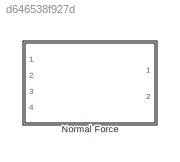
MODEL slx_d646538f927d
KIND library
CONFIG AbsTol = auto
CONFIG EnableMultiTasking = off
CONFIG FixedStep = auto
CONFIG MaxStep = auto
CONFIG MinStep = auto
CONFIG RelTol = 1e-3
CONFIG SampleTimeConstraint = Unconstrained
CONFIG Solver = VariableStepAuto
CONFIG SolverName = VariableStepAuto
CONFIG StartTime = 0.0
CONFIG StopTime = 10.0
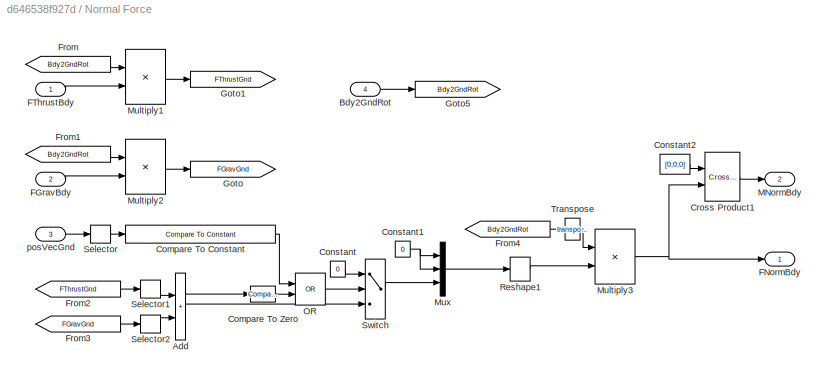
BLOCK [SubSystem] Normal Force
  Ports = [4, 2]
  RequestExecContextInheritance = off
BLOCK [Sum] Normal Force/Add
  IconShape = rectangular
  Ports = [2, 1]
BLOCK [Inport] Normal Force/Bdy2GndRot
  Port = 4
BLOCK [Reference] Normal Force/Compare To Constant  REF=simulink/Logic and Bit
Operations/Compare
To Constant
  Ports = [1, 1]
  SourceBlock = simulink/Logic and Bit\nOperations/Compare\nTo Constant
  SourceProductBaseCode = SL
  SourceType = Compare To Constant
BLOCK [Reference] Normal Force/Compare To Zero  REF=simulink/Logic and Bit
Operations/Compare
To Zero
  Ports = [1, 1]
  SourceBlock = simulink/Logic and Bit\nOperations/Compare\nTo Zero
  SourceProductBaseCode = SL
  SourceType = Compare To Zero
BLOCK [Constant] Normal Force/Constant
  Value = 0
BLOCK [Constant] Normal Force/Constant1
  Value = 0
BLOCK [Constant] Normal Force/Constant2
  Value = [0;0;0]
BLOCK [Reference] Normal Force/Cross Product1  REF=vrlib/Utilities/Cross Product
  Ports = [2, 1]
  SourceBlock = vrlib/Utilities/Cross Product
  SourceProductBaseCode = SL
  SourceType = Cross Product
BLOCK [Inport] Normal Force/FGravBdy
  Port = 2
BLOCK [Outport] Normal Force/FNormBdy
  VectorParamsAs1DForOutWhenUnconnected = off
BLOCK [Inport] Normal Force/FThrustBdy
BLOCK [From] Normal Force/From
  GotoTag = Bdy2GndRot
BLOCK [From] Normal Force/From1
  GotoTag = Bdy2GndRot
BLOCK [From] Normal Force/From2
  GotoTag = FThrustGnd
BLOCK [From] Normal Force/From3
  GotoTag = FGravGnd
BLOCK [From] Normal Force/From4
  GotoTag = Bdy2GndRot
BLOCK [Goto] Normal Force/Goto
  GotoTag = FGravGnd
BLOCK [Goto] Normal Force/Goto1
  GotoTag = FThrustGnd
BLOCK [Goto] Normal Force/Goto5
  GotoTag = Bdy2GndRot
BLOCK [Outport] Normal Force/MNormBdy
  Port = 2
  VectorParamsAs1DForOutWhenUnconnected = off
BLOCK [Product] Normal Force/Multiply1
  Multiplication = Matrix(*)
  Ports = [2, 1]
BLOCK [Product] Normal Force/Multiply2
  Multiplication = Matrix(*)
  Ports = [2, 1]
BLOCK [Product] Normal Force/Multiply3
  Multiplication = Matrix(*)
  Ports = [2, 1]
BLOCK [Mux] Normal Force/Mux
  DisplayOption = bar
  Inputs = 3
  Ports = [3, 1]
BLOCK [Logic] Normal Force/OR
  AllPortsSameDT = off
  IconShape = distinctive
  Operator = OR
  OutDataTypeStr = boolean
  Ports = [2, 1]
BLOCK [Reshape] Normal Force/Reshape1
  OutputDimensionality = Column vector (2-D)
  Ports = [1, 1]
BLOCK [Selector] Normal Force/Selector
  IndexOptions = Index vector (dialog)
  Indices = 3
  InputPortWidth = 3
  OutputSizes = 1
  Ports = [1, 1]
BLOCK [Selector] Normal Force/Selector1
  IndexOptions = Index vector (dialog)
  Indices = 3
  InputPortWidth = 3
  OutputSizes = 1
  Ports = [1, 1]
BLOCK [Selector] Normal Force/Selector2
  IndexOptions = Index vector (dialog)
  Indices = 3
  InputPortWidth = 3
  OutputSizes = 1
  Ports = [1, 1]
BLOCK [Switch] Normal Force/Switch
  Criteria = u2 > Threshold
  InputSameDT = off
  SaturateOnIntegerOverflow = off
BLOCK [Math] Normal Force/Transpose
  Operator = transpose
  Ports = [1, 1]
  SignedPower = on
BLOCK [Inport] Normal Force/posVecGnd
  Port = 3
NET Normal Force/Add:1 -> Normal Force/Compare To Zero:1, Normal Force/Switch:3
LINE Normal Force/Bdy2GndRot:1 -> Normal Force/Goto5:1
LINE Normal Force/Compare To Constant:1 -> Normal Force/OR:1
LINE Normal Force/Compare To Zero:1 -> Normal Force/OR:2
NET Normal Force/Constant1:1 -> Normal Force/Mux:1, Normal Force/Mux:2
LINE Normal Force/Constant2:1 -> Normal Force/Cross Product1:1
LINE Normal Force/Constant:1 -> Normal Force/Switch:1
LINE Normal Force/Cross Product1:1 -> Normal Force/MNormBdy:1
LINE Normal Force/FGravBdy:1 -> Normal Force/Multiply2:2
LINE Normal Force/FThrustBdy:1 -> Normal Force/Multiply1:2
LINE Normal Force/From1:1 -> Normal Force/Multiply2:1
LINE Normal Force/From2:1 -> Normal Force/Selector1:1
LINE Normal Force/From3:1 -> Normal Force/Selector2:1
LINE Normal Force/From4:1 -> Normal Force/Transpose:1
LINE Normal Force/From:1 -> Normal Force/Multiply1:1
LINE Normal Force/Multiply1:1 -> Normal Force/Goto1:1
LINE Normal Force/Multiply2:1 -> Normal Force/Goto:1
NET Normal Force/Multiply3:1 -> Normal Force/Cross Product1:2, Normal Force/FNormBdy:1
LINE Normal Force/Mux:1 -> Normal Force/Reshape1:1
LINE Normal Force/OR:1 -> Normal Force/Switch:2
LINE Normal Force/Reshape1:1 -> Normal Force/Multiply3:2
LINE Normal Force/Selector1:1 -> Normal Force/Add:1
LINE Normal Force/Selector2:1 -> Normal Force/Add:2
LINE Normal Force/Selector:1 -> Normal Force/Compare To Constant:1
LINE Normal Force/Switch:1 -> Normal Force/Mux:3
LINE Normal Force/Transpose:1 -> Normal Force/Multiply3:1
LINE Normal Force/posVecGnd:1 -> Normal Force/Selector:1
note: NET lines group one-source signal fan-out (src -> all destinations, sorted); 1:1 wires keep LINE
